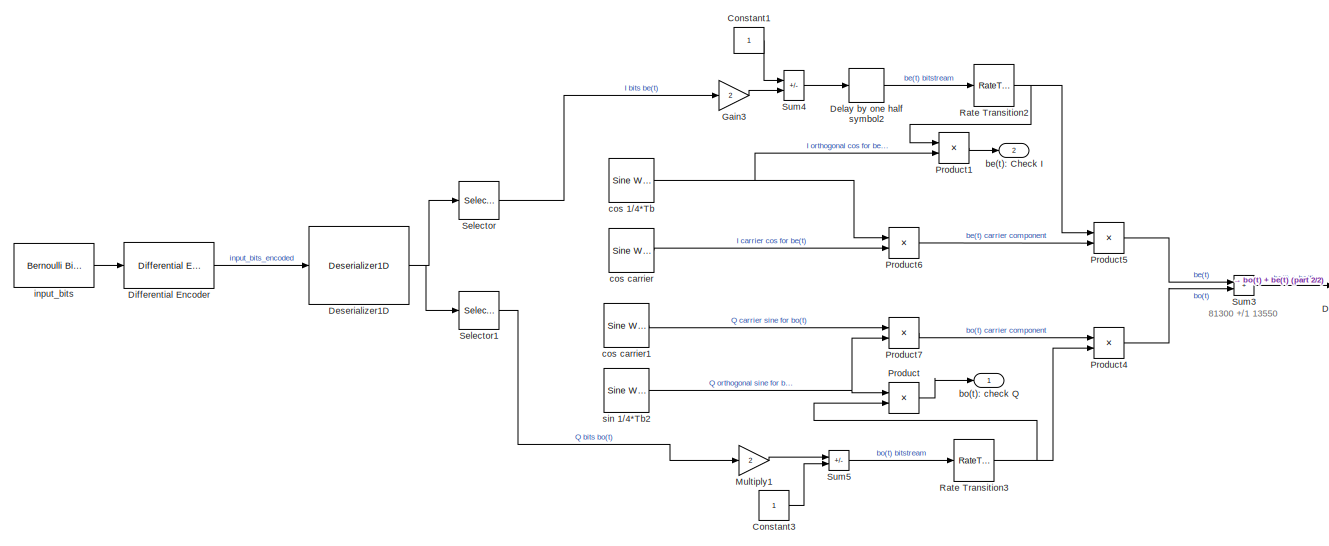
[diagram: root canvas - part 1/2, left side, full height]
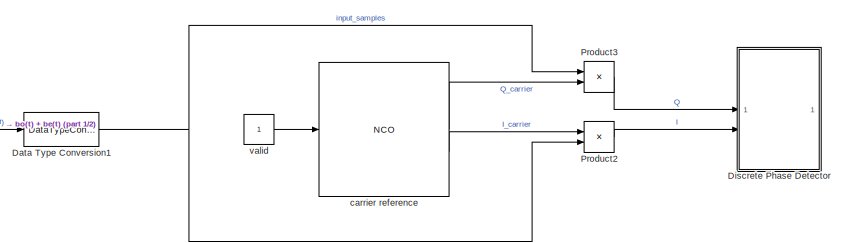
[diagram: root canvas - part 2/2, middle right region]
MODEL slx_831c8a9d5dd5
KIND model
CONFIG AbsTol = auto
CONFIG EnableMultiTasking = off
CONFIG FixedStep = auto
CONFIG MaxStep = auto
CONFIG MinStep = auto
CONFIG RelTol = 1e-3
CONFIG SampleTimeConstraint = Unconstrained
CONFIG SolverName = FixedStepDiscrete
CONFIG StartTime = 0.0
CONFIG StopTime = 0.01*(samples_per_frame/sample_rate)
BLOCK [Constant] Constant1
  OutDataTypeStr = double
  SampleTime = 1/symbol_rate
BLOCK [Constant] Constant3
  OutDataTypeStr = double
  SampleTime = 1/symbol_rate
BLOCK [DataTypeConversion] Data Type Conversion1
  OutDataTypeStr = fixdt(1,16,15)
  RndMeth = Floor
  SaturateOnIntegerOverflow = off
BLOCK [Delay] Delay by one half symbol2
  DelayLength = 1
  InputPortMap = u0
  SampleTime = 1/(bits_per_symbol*symbol_rate)
BLOCK [Reference] Deserializer1D  REF=hdlsllib/HDL Operations/Deserializer1D
  SourceBlock = hdlsllib/HDL Operations/Deserializer1D
  SourceType = Deserializer1D
BLOCK [Reference] Differential Encoder  REF=commsrccod2/Differential
Encoder
  SourceBlock = commsrccod2/Differential\nEncoder
  SourceType = Differential Encoder
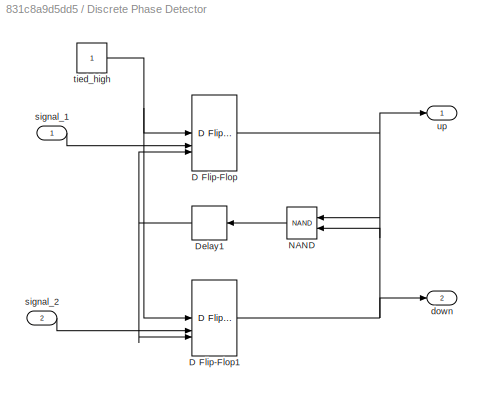
BLOCK [SubSystem] Discrete Phase Detector
BLOCK [Reference] Discrete Phase Detector/D Flip-Flop  REF=simulink_extras/Flip Flops/D Flip-Flop
  SourceBlock = simulink_extras/Flip Flops/D Flip-Flop
  SourceType = DFlipFlop
BLOCK [Reference] Discrete Phase Detector/D Flip-Flop1  REF=simulink_extras/Flip Flops/D Flip-Flop
  SourceBlock = simulink_extras/Flip Flops/D Flip-Flop
  SourceType = DFlipFlop
BLOCK [Delay] Discrete Phase Detector/Delay1
  DelayLength = 1
  InputPortMap = u0
  NameLocation = top
BLOCK [Logic] Discrete Phase Detector/NAND
  AllPortsSameDT = off
  IconShape = distinctive
  NameLocation = top
  Operator = NAND
  OutDataTypeStr = boolean
BLOCK [Outport] Discrete Phase Detector/down
  Port = 2
BLOCK [Inport] Discrete Phase Detector/signal_1
BLOCK [Inport] Discrete Phase Detector/signal_2
  Port = 2
BLOCK [Constant] Discrete Phase Detector/tied_high
  OutDataTypeStr = boolean
  SampleTime = 1/symbol_rate
BLOCK [Outport] Discrete Phase Detector/up
BLOCK [Gain] Gain3
  Gain = 2
  OutDataTypeStr = double
BLOCK [Gain] Multiply1
  Gain = 2
  OutDataTypeStr = double
BLOCK [Product] Product
BLOCK [Product] Product1
BLOCK [Product] Product2
BLOCK [Product] Product3
BLOCK [Product] Product4
BLOCK [Product] Product5
BLOCK [Product] Product6
  OutDataTypeStr = double
BLOCK [Product] Product7
  OutDataTypeStr = double
BLOCK [RateTransition] Rate Transition2
  Deterministic = off
  OutPortSampleTime = 1/device_clock
  OutPortSampleTimeMultiple = device_clock/symbol_rate
BLOCK [RateTransition] Rate Transition3
  Deterministic = off
  OutPortSampleTime = 1/device_clock
  OutPortSampleTimeMultiple = device_clock/symbol_rate
BLOCK [Selector] Selector
  IndexOptions = Index vector (dialog)
  Indices = [2:2]
  InputPortWidth = 2
  OutputSizes = 1
BLOCK [Selector] Selector1
  IndexOptions = Index vector (dialog)
  Indices = [1:1]
  InputPortWidth = 2
  OutputSizes = 1
BLOCK [Sum] Sum3
  AccumDataTypeStr = double
  IconShape = rectangular
BLOCK [Sum] Sum4
  AccumDataTypeStr = double
  IconShape = rectangular
  Inputs = |-+
BLOCK [Sum] Sum5
  AccumDataTypeStr = double
  IconShape = rectangular
  Inputs = |+-
BLOCK [Outport] be(t): Check I
  Port = 2
BLOCK [Outport] bo(t): check Q
BLOCK [Reference] carrier reference  REF=dsphdlsigops2/NCO
  LibrarySourceBlock = dsphdlsrcs2/NCO
  SourceBlock = dsphdlsigops2/NCO
  SourceType = NCO
BLOCK [Reference] cos 1//4*Tb  REF=dspsrcs4/Sine Wave
  LibrarySourceBlock = dsphdlsupportsrcs/Sine Wave
  SourceBlock = dspsrcs4/Sine Wave
  SourceType = Sine Wave
BLOCK [Reference] cos carrier  REF=dspsrcs4/Sine Wave
  LibrarySourceBlock = dsphdlsupportsrcs/Sine Wave
  SourceBlock = dspsrcs4/Sine Wave
  SourceType = Sine Wave
BLOCK [Reference] cos carrier1  REF=dspsrcs4/Sine Wave
  LibrarySourceBlock = dsphdlsupportsrcs/Sine Wave
  SourceBlock = dspsrcs4/Sine Wave
  SourceType = Sine Wave
BLOCK [Reference] input_bits  REF=commrandsrc3/Bernoulli Binary
Generator
  SourceBlock = commrandsrc3/Bernoulli Binary\nGenerator
  SourceType = Bernoulli Binary Generator
BLOCK [Reference] sin 1//4*Tb2  REF=dspsrcs4/Sine Wave
  LibrarySourceBlock = dsphdlsupportsrcs/Sine Wave
  SourceBlock = dspsrcs4/Sine Wave
  SourceType = Sine Wave
BLOCK [Constant] valid
  OutDataTypeStr = boolean
  SampleTime = 1/device_clock
ANNOTATION (root): 81300 +/1 13550
LINE Constant1:1 -> Sum4:1
LINE Constant3:1 -> Sum5:2
NET Data Type Conversion1:1 -> Product2:2, Product3:1
LINE Delay by one half symbol2:1 -> Rate Transition2:1
NET Deserializer1D:1 -> Selector1:1, Selector:1
LINE Differential Encoder:1 -> Deserializer1D:1
NET Discrete Phase Detector/D Flip-Flop1:1 -> Discrete Phase Detector/NAND:2, Discrete Phase Detector/down:1
NET Discrete Phase Detector/D Flip-Flop:1 -> Discrete Phase Detector/NAND:1, Discrete Phase Detector/up:1
NET Discrete Phase Detector/Delay1:1 -> Discrete Phase Detector/D Flip-Flop1:3, Discrete Phase Detector/D Flip-Flop:3
LINE Discrete Phase Detector/NAND:1 -> Discrete Phase Detector/Delay1:1
LINE Discrete Phase Detector/signal_1:1 -> Discrete Phase Detector/D Flip-Flop:2
LINE Discrete Phase Detector/signal_2:1 -> Discrete Phase Detector/D Flip-Flop1:2
NET Discrete Phase Detector/tied_high:1 -> Discrete Phase Detector/D Flip-Flop1:1, Discrete Phase Detector/D Flip-Flop:1
LINE Gain3:1 -> Sum4:2
LINE Multiply1:1 -> Sum5:1
LINE Product1:1 -> be(t): Check I:1
LINE Product2:1 -> Discrete Phase Detector:2
LINE Product3:1 -> Discrete Phase Detector:1
LINE Product4:1 -> Sum3:2
LINE Product5:1 -> Sum3:1
LINE Product6:1 -> Product5:2
LINE Product7:1 -> Product4:1
LINE Product:1 -> bo(t): check Q:1
NET Rate Transition2:1 -> Product1:1, Product5:1
NET Rate Transition3:1 -> Product4:2, Product:2
LINE Selector1:1 -> Multiply1:1
LINE Selector:1 -> Gain3:1
LINE Sum3:1 -> Data Type Conversion1:1
LINE Sum4:1 -> Delay by one half symbol2:1
LINE Sum5:1 -> Rate Transition3:1
LINE carrier reference:1 -> Product3:2
LINE carrier reference:2 -> Product2:1
NET cos 1//4*Tb:1 -> Product1:2, Product6:1
LINE cos carrier1:1 -> Product7:1
LINE cos carrier:1 -> Product6:2
LINE input_bits:1 -> Differential Encoder:1
NET sin 1//4*Tb2:1 -> Product7:2, Product:1
LINE valid:1 -> carrier reference:1
note: NET lines group one-source signal fan-out (src -> all destinations, sorted); 1:1 wires keep LINE
